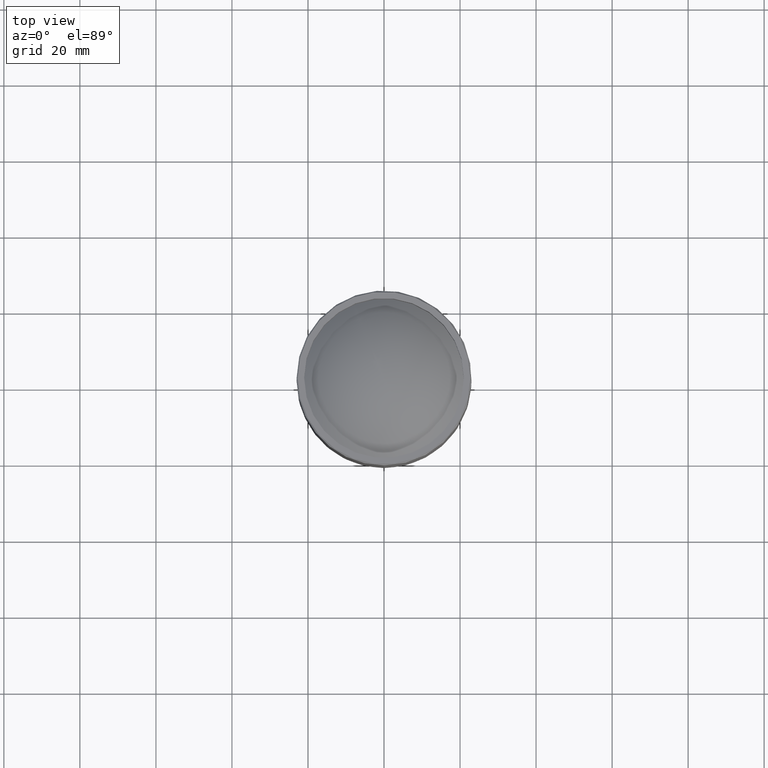
[diagram: clean part render]
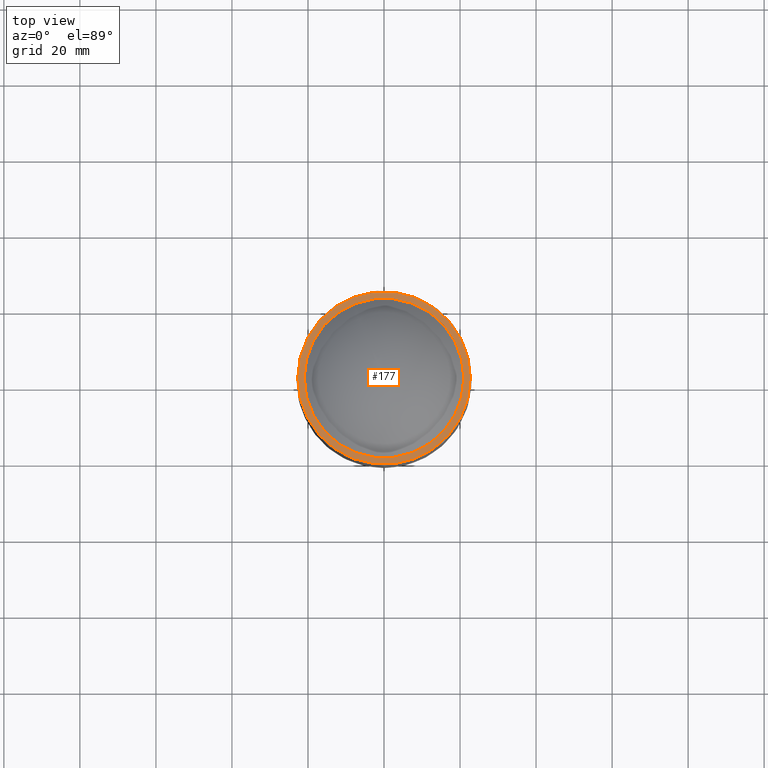
[diagram: same view with one face highlighted and labeled with its STEP entity id]
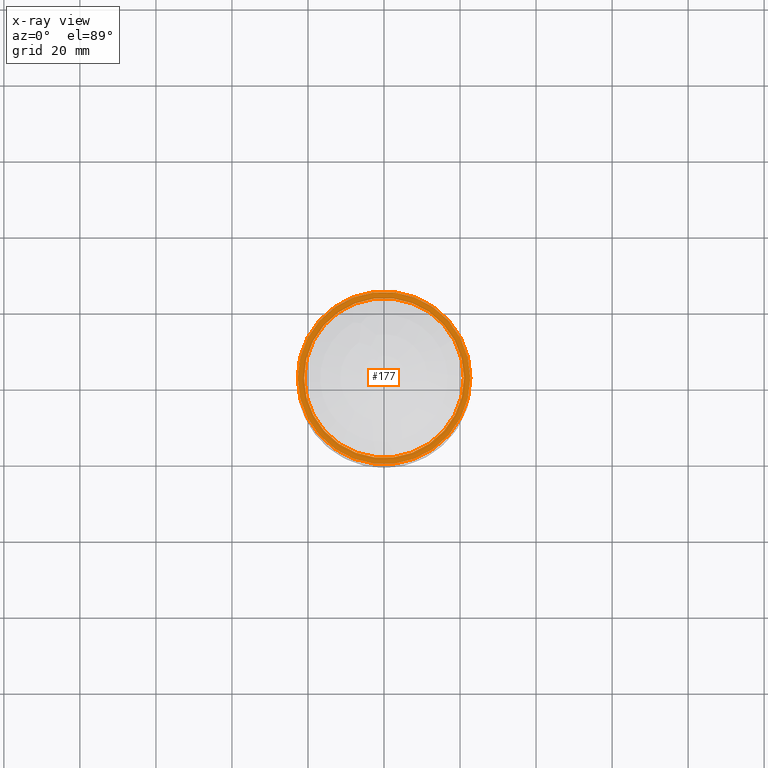
[diagram: x-ray of the same camera — body ghosted, the highlighted face saturated]
A machine part, top view. The second image highlights one B-rep face of the part: STEP entity #177.
The next image is the same camera in x-ray: the body ghosted, the highlighted face saturated — about 0% of this face is hidden behind the body in this view.
In plain terms, the highlighted planar face has unit normal (0, 0, -1).
Its self-contained STEP definition (entity closure, byte-faithful):
#10 = FACE_OUTER_BOUND ( 'NONE', #547, .T. ) ;
#11 = CARTESIAN_POINT ( 'NONE',  ( -22.70000000000002416, -8.273863282956645258E-15, -733.0000000000000000 ) ) ;
#42 = AXIS2_PLACEMENT_3D ( 'NONE', #790, #466, #403 ) ;
#177 = ADVANCED_FACE ( 'NONE', ( #216, #10 ), #284, .F. ) ;
#216 = FACE_BOUND ( 'NONE', #600, .T. ) ;
#259 = AXIS2_PLACEMENT_3D ( 'NONE', #263, #318, #515 ) ;
#263 = CARTESIAN_POINT ( 'NONE',  ( -1.214306433183764966E-14, -8.273863282956645258E-15, -733.0000000000000000 ) ) ;
#284 = PLANE ( 'NONE',  #42 ) ;
#302 = ORIENTED_EDGE ( 'NONE', *, *, #787, .F. ) ;
#318 = DIRECTION ( 'NONE',  ( 0.000000000000000000, 0.000000000000000000, -1.000000000000000000 ) ) ;
#378 = CARTESIAN_POINT ( 'NONE',  ( -1.181967344874662072E-14, -8.273863282956648413E-15, -733.0000000000000000 ) ) ;
#384 = DIRECTION ( 'NONE',  ( 0.000000000000000000, 0.000000000000000000, 1.000000000000000000 ) ) ;
#399 = VERTEX_POINT ( 'NONE', #11 ) ;
#403 = DIRECTION ( 'NONE',  ( 0.000000000000000000, 1.000000000000000000, 5.550944505959339029E-17 ) ) ;
#466 = DIRECTION ( 'NONE',  ( 4.208976392310296057E-22, 5.550944505959339029E-17, -1.000000000000000000 ) ) ;
#515 = DIRECTION ( 'NONE',  ( -1.000000000000000000, 0.000000000000000000, 0.000000000000000000 ) ) ;
#521 = CIRCLE ( 'NONE', #735, 21.00000000000000355 ) ;
#524 = VERTEX_POINT ( 'NONE', #640 ) ;
#547 = EDGE_LOOP ( 'NONE', ( #734 ) ) ;
#600 = EDGE_LOOP ( 'NONE', ( #302 ) ) ;
#624 = DIRECTION ( 'NONE',  ( 1.000000000000000000, 0.000000000000000000, 0.000000000000000000 ) ) ;
#640 = CARTESIAN_POINT ( 'NONE',  ( 20.99999999999999289, -8.273863282956648413E-15, -733.0000000000000000 ) ) ;
#659 = EDGE_CURVE ( 'NONE', #399, #399, #695, .T. ) ;
#695 = CIRCLE ( 'NONE', #259, 22.70000000000001350 ) ;
#734 = ORIENTED_EDGE ( 'NONE', *, *, #659, .F. ) ;
#735 = AXIS2_PLACEMENT_3D ( 'NONE', #378, #384, #624 ) ;
#787 = EDGE_CURVE ( 'NONE', #524, #524, #521, .T. ) ;
#790 = CARTESIAN_POINT ( 'NONE',  ( -1.181967357501591288E-14, 21.74999999999999645, -733.0000000000000000 ) ) ;